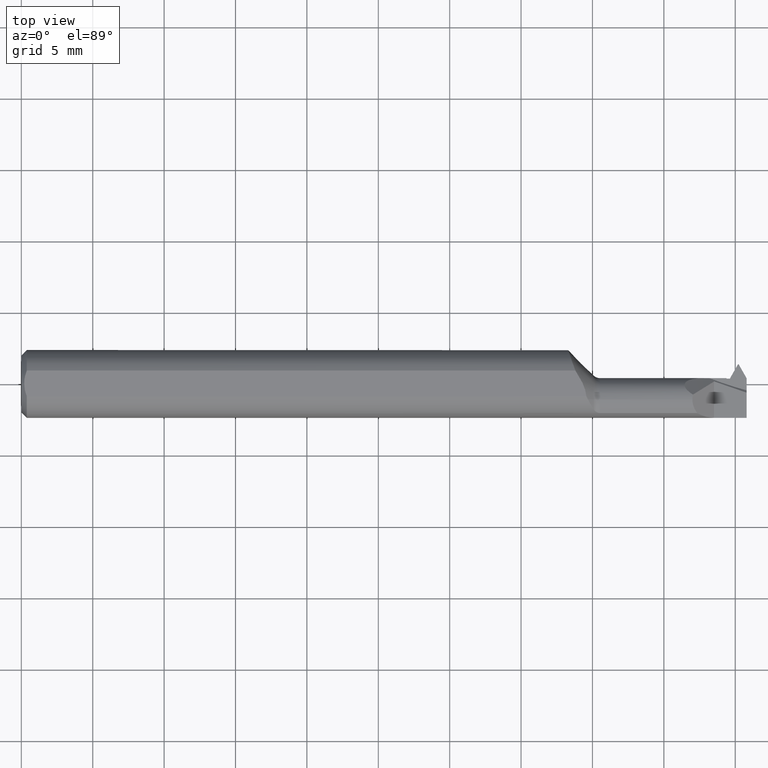
[diagram: clean part render]
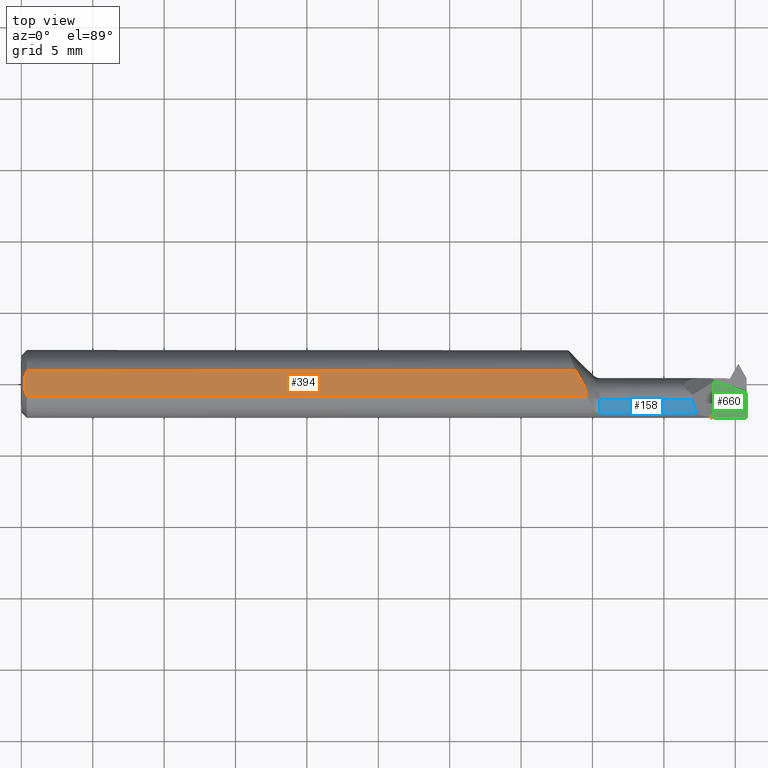
[diagram: same view with three faces highlighted in distinct colors, each labeled with its STEP entity id]
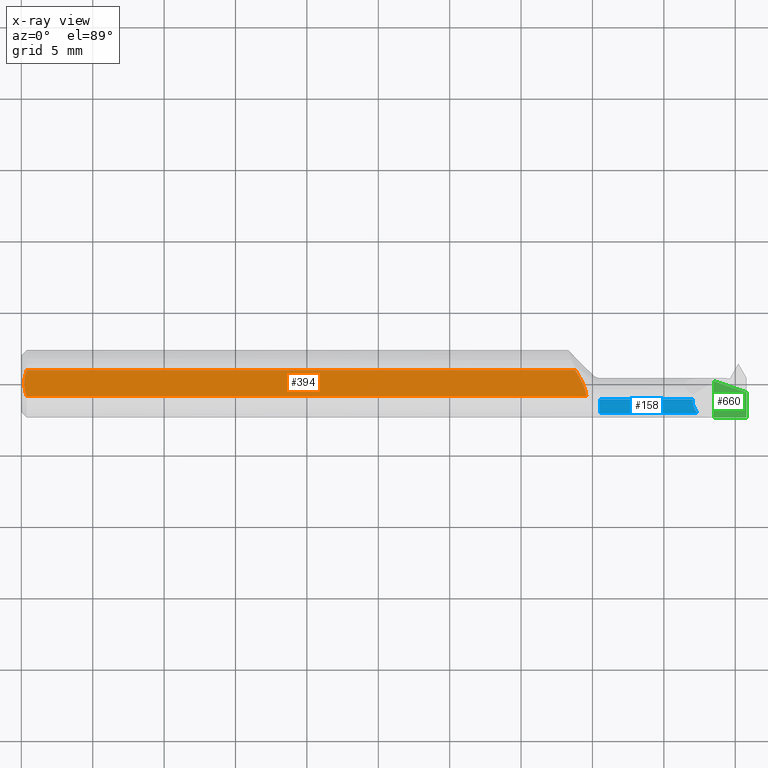
[diagram: x-ray of the same camera — body ghosted, the three highlighted faces saturated]
A machine part, top view with three faces highlighted in distinct colors.
The next image is the same camera in x-ray (body ghosted, the three faces saturated) — at least one of them is partly hidden behind the body in this view.
Their STEP definitions:

[orange] entity #394 — the highlighted planar face has unit normal (-0, 0, -1).
#39 = CARTESIAN_POINT ( 'NONE',  ( 0.008659489716310201507, 0.01217326722089584999, 0.08659999999999998255 ) ) ;
#48 = VERTEX_POINT ( 'NONE', #56 ) ;
#56 = CARTESIAN_POINT ( 'NONE',  ( 0.007999999999999731284, 1.373409503060175658E-17, 0.08659999999999998255 ) ) ;
#76 = EDGE_CURVE ( 'NONE', #924, #48, #609, .T. ) ;
#95 = CARTESIAN_POINT ( 'NONE',  ( 1.558023520836405496, -0.03551619348973038964, 0.08659999999999998255 ) ) ;
#114 = CARTESIAN_POINT ( 'NONE',  ( 0.01499999999999997689, 0.03551619348973089618, 0.08659999999999998255 ) ) ;
#127 = CARTESIAN_POINT ( 'NONE',  ( 0.007999999999999731284, 1.373409503060175658E-17, 0.08659999999999998255 ) ) ;
#138 = B_SPLINE_CURVE_WITH_KNOTS ( 'NONE', 3,
 ( #312, #819, #638, #965, #987, #231 ),
 .UNSPECIFIED., .F., .F.,
 ( 4, 2, 4 ),
 ( 0.004221996091487678973, 0.005214190001193096460, 0.006206383910898514815 ),
 .UNSPECIFIED. ) ;
#154 = EDGE_CURVE ( 'NONE', #48, #286, #639, .T. ) ;
#173 = EDGE_CURVE ( 'NONE', #1059, #286, #641, .T. ) ;
#177 = ORIENTED_EDGE ( 'NONE', *, *, #154, .T. ) ;
#205 = DIRECTION ( 'NONE',  ( -1.000000000000000000, 0.000000000000000000, 0.000000000000000000 ) ) ;
#231 = CARTESIAN_POINT ( 'NONE',  ( 1.558023520836405496, -0.03551619348973038964, 0.08659999999999998255 ) ) ;
#238 = CARTESIAN_POINT ( 'NONE',  ( 1.527701525703423213, 0.03551619348973086149, 0.08659999999999998255 ) ) ;
#256 = VERTEX_POINT ( 'NONE', #238 ) ;
#275 = CARTESIAN_POINT ( 'NONE',  ( 0.01499999999999997689, -0.03551619348973089618, 0.08659999999999998255 ) ) ;
#278 = VECTOR ( 'NONE', #283, 39.37007874015748143 ) ;
#283 = DIRECTION ( 'NONE',  ( 1.000000000000000000, 0.000000000000000000, 0.000000000000000000 ) ) ;
#286 = VERTEX_POINT ( 'NONE', #894 ) ;
#312 = CARTESIAN_POINT ( 'NONE',  ( 1.527701525703423213, 0.03551619348973086149, 0.08659999999999998255 ) ) ;
#359 = CARTESIAN_POINT ( 'NONE',  ( 0.008649077606599600218, -0.01212214432639825874, 0.08660000000000001030 ) ) ;
#382 = CARTESIAN_POINT ( 'NONE',  ( 0.01107849272577461977, 0.02400420685728455600, 0.08660000000000001030 ) ) ;
#394 = ADVANCED_FACE ( 'NONE', ( #943 ), #605, .F. ) ;
#396 = DIRECTION ( 'NONE',  ( -1.000000000000000000, -0.000000000000000000, -0.000000000000000000 ) ) ;
#426 = LINE ( 'NONE', #762, #278 ) ;
#479 = CARTESIAN_POINT ( 'NONE',  ( 2.000000000000000000, -0.03551619348973089618, 0.08659999999999998255 ) ) ;
#503 = AXIS2_PLACEMENT_3D ( 'NONE', #545, #938, #205 ) ;
#512 = EDGE_LOOP ( 'NONE', ( #728, #1017, #576, #177, #824 ) ) ;
#545 = CARTESIAN_POINT ( 'NONE',  ( 0.000000000000000000, 0.1749999999999999889, 0.08659999999999998255 ) ) ;
#576 = ORIENTED_EDGE ( 'NONE', *, *, #76, .T. ) ;
#582 = EDGE_CURVE ( 'NONE', #256, #1059, #138, .T. ) ;
#605 = PLANE ( 'NONE',  #503 ) ;
#608 = CARTESIAN_POINT ( 'NONE',  ( 0.01284132645814099055, 0.02982718733043053169, 0.08659999999999998255 ) ) ;
#609 = B_SPLINE_CURVE_WITH_KNOTS ( 'NONE', 3,
 ( #114, #608, #382, #39, #945, #127 ),
 .UNSPECIFIED., .F., .F.,
 ( 4, 2, 4 ),
 ( 0.001890229186177329410, 0.002347021077235529954, 0.002803812968293730064 ),
 .UNSPECIFIED. ) ;
#620 = CARTESIAN_POINT ( 'NONE',  ( 0.01287312418598231430, -0.02991098762076270859, 0.08660000000000001030 ) ) ;
#638 = CARTESIAN_POINT ( 'NONE',  ( 1.541750224432351546, 0.01358083083026439229, 0.08660000000000001030 ) ) ;
#639 = B_SPLINE_CURVE_WITH_KNOTS ( 'NONE', 3,
 ( #780, #769, #359, #940, #620, #275 ),
 .UNSPECIFIED., .F., .F.,
 ( 4, 2, 4 ),
 ( 0.002803812968293730064, 0.003261451498734896978, 0.003719090029176063891 ),
 .UNSPECIFIED. ) ;
#641 = LINE ( 'NONE', #479, #696 ) ;
#696 = VECTOR ( 'NONE', #396, 39.37007874015748143 ) ;
#728 = ORIENTED_EDGE ( 'NONE', *, *, #582, .F. ) ;
#762 = CARTESIAN_POINT ( 'NONE',  ( 2.000000000000000000, 0.03551619348973089618, 0.08659999999999998255 ) ) ;
#769 = CARTESIAN_POINT ( 'NONE',  ( 0.007999999999999741693, -0.006095550506083000954, 0.08659999999999998255 ) ) ;
#780 = CARTESIAN_POINT ( 'NONE',  ( 0.007999999999999731284, 1.373409503060175658E-17, 0.08659999999999998255 ) ) ;
#819 = CARTESIAN_POINT ( 'NONE',  ( 1.534990260883382085, 0.02470984047336723805, 0.08659999999999998255 ) ) ;
#824 = ORIENTED_EDGE ( 'NONE', *, *, #173, .F. ) ;
#894 = CARTESIAN_POINT ( 'NONE',  ( 0.01499999999999997689, -0.03551619348973089618, 0.08659999999999998255 ) ) ;
#924 = VERTEX_POINT ( 'NONE', #995 ) ;
#938 = DIRECTION ( 'NONE',  ( -0.000000000000000000, 0.000000000000000000, -1.000000000000000000 ) ) ;
#940 = CARTESIAN_POINT ( 'NONE',  ( 0.01108864734896783041, -0.02405407040721167788, 0.08659999999999998255 ) ) ;
#943 = FACE_OUTER_BOUND ( 'NONE', #512, .T. ) ;
#945 = CARTESIAN_POINT ( 'NONE',  ( 0.007999999999999746897, 0.006084273629736270360, 0.08660000000000001030 ) ) ;
#965 = CARTESIAN_POINT ( 'NONE',  ( 1.552683531163871811, -0.009962793248527845175, 0.08659999999999998255 ) ) ;
#987 = CARTESIAN_POINT ( 'NONE',  ( 1.556820612909630919, -0.02257368972052711462, 0.08660000000000001030 ) ) ;
#992 = EDGE_CURVE ( 'NONE', #924, #256, #426, .T. ) ;
#995 = CARTESIAN_POINT ( 'NONE',  ( 0.01499999999999997689, 0.03551619348973089618, 0.08659999999999998255 ) ) ;
#1017 = ORIENTED_EDGE ( 'NONE', *, *, #992, .F. ) ;
#1059 = VERTEX_POINT ( 'NONE', #95 ) ;

[blue] entity #158 — the highlighted cylindrical surface (edge-blend (fillet) strip) has radius 1.524 mm, axis along (-1, -0, -0).
#45 = DIRECTION ( 'NONE',  ( -1.000000000000000000, -0.000000000000000000, -0.000000000000000000 ) ) ;
#74 = DIRECTION ( 'NONE',  ( -1.000000000000000000, -0.000000000000000000, -0.000000000000000000 ) ) ;
#94 = VERTEX_POINT ( 'NONE', #376 ) ;
#100 = ORIENTED_EDGE ( 'NONE', *, *, #299, .T. ) ;
#110 =( BOUNDED_CURVE ( )  B_SPLINE_CURVE ( 3, ( #962, #226, #148, #470 ),
 .UNSPECIFIED., .F., .T. ) 
 B_SPLINE_CURVE_WITH_KNOTS ( ( 4, 4 ),
 ( 5.610499824220555709, 6.283185307179586232 ),
 .UNSPECIFIED. ) 
 CURVE ( )  GEOMETRIC_REPRESENTATION_ITEM ( )  RATIONAL_B_SPLINE_CURVE ( ( 1.000000000000000000, 0.9626453375995694950, 0.9626453375995694950, 1.000000000000000000 ) ) 
 REPRESENTATION_ITEM ( '' )  );
#141 = DIRECTION ( 'NONE',  ( 0.000000000000000000, 0.000000000000000000, 1.000000000000000000 ) ) ;
#148 = CARTESIAN_POINT ( 'NONE',  ( 1.850399999999999823, -0.05731375143557378149, 0.06000000000000002554 ) ) ;
#158 = ADVANCED_FACE ( 'NONE', ( #534 ), #935, .T. ) ;
#161 = CARTESIAN_POINT ( 'NONE',  ( 1.595355339059326916, -0.04360000000000000681, 0.000000000000000000 ) ) ;
#179 = VECTOR ( 'NONE', #74, 39.37007874015748143 ) ;
#183 = EDGE_CURVE ( 'NONE', #776, #94, #221, .T. ) ;
#201 = CARTESIAN_POINT ( 'NONE',  ( 1.584999999999999964, -0.04360000000000000681, 0.000000000000000000 ) ) ;
#214 = CIRCLE ( 'NONE', #263, 0.05999999999999999778 ) ;
#221 = LINE ( 'NONE', #648, #919 ) ;
#222 = EDGE_CURVE ( 'NONE', #344, #776, #214, .T. ) ;
#226 = CARTESIAN_POINT ( 'NONE',  ( 1.854926044998712831, -0.07025909403846863910, 0.05547395500128676771 ) ) ;
#263 = AXIS2_PLACEMENT_3D ( 'NONE', #161, #883, #141 ) ;
#299 = EDGE_CURVE ( 'NONE', #94, #305, #110, .T. ) ;
#305 = VERTEX_POINT ( 'NONE', #634 ) ;
#344 = VERTEX_POINT ( 'NONE', #715 ) ;
#376 = CARTESIAN_POINT ( 'NONE',  ( 1.863470928347331190, -0.08098532110091742620, 0.04692907165266854003 ) ) ;
#470 = CARTESIAN_POINT ( 'NONE',  ( 1.850399999999999379, -0.04360000000000000681, 0.05999999999999999778 ) ) ;
#478 = EDGE_LOOP ( 'NONE', ( #100, #637, #666, #592 ) ) ;
#487 = AXIS2_PLACEMENT_3D ( 'NONE', #201, #45, #867 ) ;
#534 = FACE_OUTER_BOUND ( 'NONE', #478, .T. ) ;
#553 = DIRECTION ( 'NONE',  ( 1.000000000000000000, 0.000000000000000000, 0.000000000000000000 ) ) ;
#592 = ORIENTED_EDGE ( 'NONE', *, *, #183, .T. ) ;
#634 = CARTESIAN_POINT ( 'NONE',  ( 1.850399999999999379, -0.04360000000000000681, 0.05999999999999999778 ) ) ;
#637 = ORIENTED_EDGE ( 'NONE', *, *, #724, .T. ) ;
#648 = CARTESIAN_POINT ( 'NONE',  ( 1.767499999999999849, -0.08098532110091744007, 0.04692907165266853309 ) ) ;
#666 = ORIENTED_EDGE ( 'NONE', *, *, #222, .T. ) ;
#713 = LINE ( 'NONE', #720, #179 ) ;
#715 = CARTESIAN_POINT ( 'NONE',  ( 1.595355339059326916, -0.04360000000000000681, 0.05999999999999999778 ) ) ;
#720 = CARTESIAN_POINT ( 'NONE',  ( 1.584999999999999964, -0.04360000000000000681, 0.05999999999999999778 ) ) ;
#724 = EDGE_CURVE ( 'NONE', #305, #344, #713, .T. ) ;
#776 = VERTEX_POINT ( 'NONE', #799 ) ;
#799 = CARTESIAN_POINT ( 'NONE',  ( 1.595355339059326916, -0.08098532110091744007, 0.04692907165266853309 ) ) ;
#867 = DIRECTION ( 'NONE',  ( 0.000000000000000000, 0.000000000000000000, 1.000000000000000000 ) ) ;
#883 = DIRECTION ( 'NONE',  ( 1.000000000000000000, 0.000000000000000000, 0.000000000000000000 ) ) ;
#919 = VECTOR ( 'NONE', #553, 39.37007874015748143 ) ;
#935 = CYLINDRICAL_SURFACE ( 'NONE', #487, 0.05999999999999999778 ) ;
#962 = CARTESIAN_POINT ( 'NONE',  ( 1.863470928347331190, -0.08098532110091742620, 0.04692907165266854003 ) ) ;

[green] entity #660 — the highlighted planar face has unit normal (-0, 0, -1).
#5 = CARTESIAN_POINT ( 'NONE',  ( 1.910000000000000142, 0.2999999999999999889, -6.429183357567480113E-17 ) ) ;
#21 = EDGE_CURVE ( 'NONE', #672, #1031, #854, .T. ) ;
#30 = ORIENTED_EDGE ( 'NONE', *, *, #726, .T. ) ;
#69 = LINE ( 'NONE', #725, #752 ) ;
#120 = DIRECTION ( 'NONE',  ( -0.000000000000000000, 1.000000000000000000, -0.000000000000000000 ) ) ;
#130 = AXIS2_PLACEMENT_3D ( 'NONE', #959, #215, #455 ) ;
#156 = CARTESIAN_POINT ( 'NONE',  ( 2.000000000000000000, -0.02397975965603361612, -6.429183357567480113E-17 ) ) ;
#189 = CARTESIAN_POINT ( 'NONE',  ( 1.939382257108272833, -0.004989488072673561869, -6.829619984160658046E-17 ) ) ;
#215 = DIRECTION ( 'NONE',  ( -0.000000000000000000, 0.000000000000000000, -1.000000000000000000 ) ) ;
#266 = CARTESIAN_POINT ( 'NONE',  ( 2.000000000000000000, -0.02397975965603361612, -6.429183357567480113E-17 ) ) ;
#273 = ORIENTED_EDGE ( 'NONE', *, *, #968, .F. ) ;
#309 = EDGE_CURVE ( 'NONE', #514, #421, #69, .T. ) ;
#397 = CARTESIAN_POINT ( 'NONE',  ( 2.000000000000000000, 0.2999999999999999889, -6.429183357567480113E-17 ) ) ;
#421 = VERTEX_POINT ( 'NONE', #450 ) ;
#450 = CARTESIAN_POINT ( 'NONE',  ( 1.910000000000000142, -0.09359999999999998876, -6.429183357567478880E-17 ) ) ;
#455 = DIRECTION ( 'NONE',  ( -1.000000000000000000, 0.000000000000000000, 0.000000000000000000 ) ) ;
#482 = VECTOR ( 'NONE', #120, 39.37007874015748143 ) ;
#514 = VERTEX_POINT ( 'NONE', #653 ) ;
#539 = VECTOR ( 'NONE', #1046, 39.37007874015748143 ) ;
#548 = LINE ( 'NONE', #397, #539 ) ;
#587 = CARTESIAN_POINT ( 'NONE',  ( 1.910000000000000142, 0.007137360978955826704, 3.512771393216766345E-17 ) ) ;
#653 = CARTESIAN_POINT ( 'NONE',  ( 2.000000000000000000, -0.09359999999999989162, -6.429183357567480113E-17 ) ) ;
#660 = ADVANCED_FACE ( 'NONE', ( #932 ), #1052, .F. ) ;
#672 = VERTEX_POINT ( 'NONE', #156 ) ;
#677 = ORIENTED_EDGE ( 'NONE', *, *, #21, .T. ) ;
#725 = CARTESIAN_POINT ( 'NONE',  ( 2.000000000000000000, -0.09360000000000001652, -6.429183357567480113E-17 ) ) ;
#726 = EDGE_CURVE ( 'NONE', #514, #672, #548, .T. ) ;
#742 = LINE ( 'NONE', #5, #482 ) ;
#752 = VECTOR ( 'NONE', #1051, 39.37007874015748143 ) ;
#793 = ORIENTED_EDGE ( 'NONE', *, *, #309, .F. ) ;
#807 = EDGE_LOOP ( 'NONE', ( #30, #677, #273, #793 ) ) ;
#849 = CARTESIAN_POINT ( 'NONE',  ( 1.910000000000000142, 0.007137360978955826704, 3.512771393216766345E-17 ) ) ;
#854 =( BOUNDED_CURVE ( )  B_SPLINE_CURVE ( 3, ( #266, #1010, #189, #587 ),
 .UNSPECIFIED., .F., .T. ) 
 B_SPLINE_CURVE_WITH_KNOTS ( ( 4, 4 ),
 ( 0.2726088529369870561, 0.3891374444033925961 ),
 .UNSPECIFIED. ) 
 CURVE ( )  GEOMETRIC_REPRESENTATION_ITEM ( )  RATIONAL_B_SPLINE_CURVE ( ( 1.000000000000000000, 0.9988687440274405249, 0.9988687440274405249, 1.000000000000000000 ) ) 
 REPRESENTATION_ITEM ( '' )  );
#932 = FACE_OUTER_BOUND ( 'NONE', #807, .T. ) ;
#959 = CARTESIAN_POINT ( 'NONE',  ( 1.910000000000000142, 0.2999999999999999889, -6.429183357567480113E-17 ) ) ;
#968 = EDGE_CURVE ( 'NONE', #421, #1031, #742, .T. ) ;
#1010 = CARTESIAN_POINT ( 'NONE',  ( 1.969416233223132418, -0.01537360871616766031, -6.829619984160658046E-17 ) ) ;
#1031 = VERTEX_POINT ( 'NONE', #849 ) ;
#1046 = DIRECTION ( 'NONE',  ( -0.000000000000000000, 1.000000000000000000, -0.000000000000000000 ) ) ;
#1051 = DIRECTION ( 'NONE',  ( -1.000000000000000000, -0.000000000000000000, -0.000000000000000000 ) ) ;
#1052 = PLANE ( 'NONE',  #130 ) ;